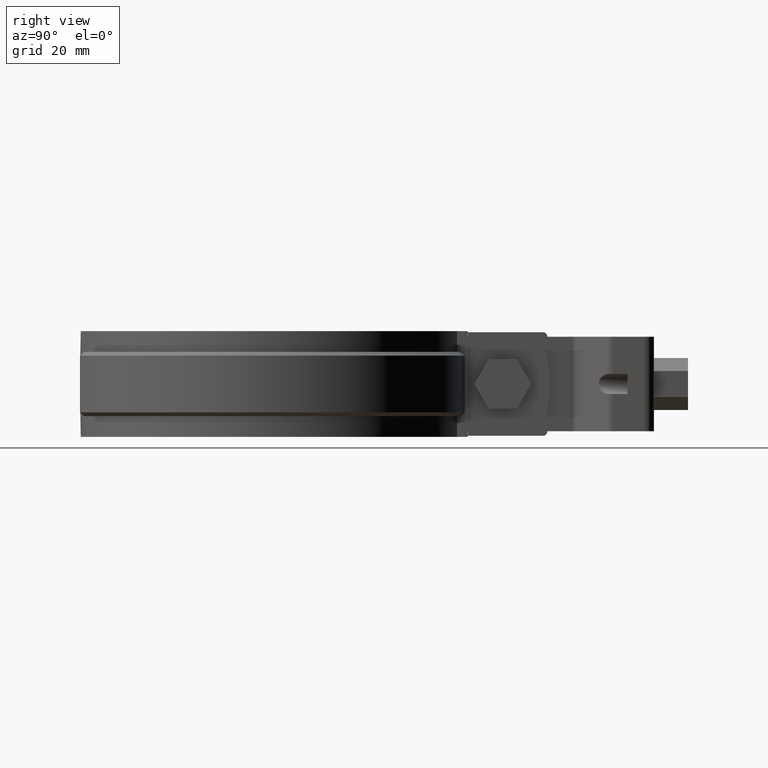
[diagram: clean part render]
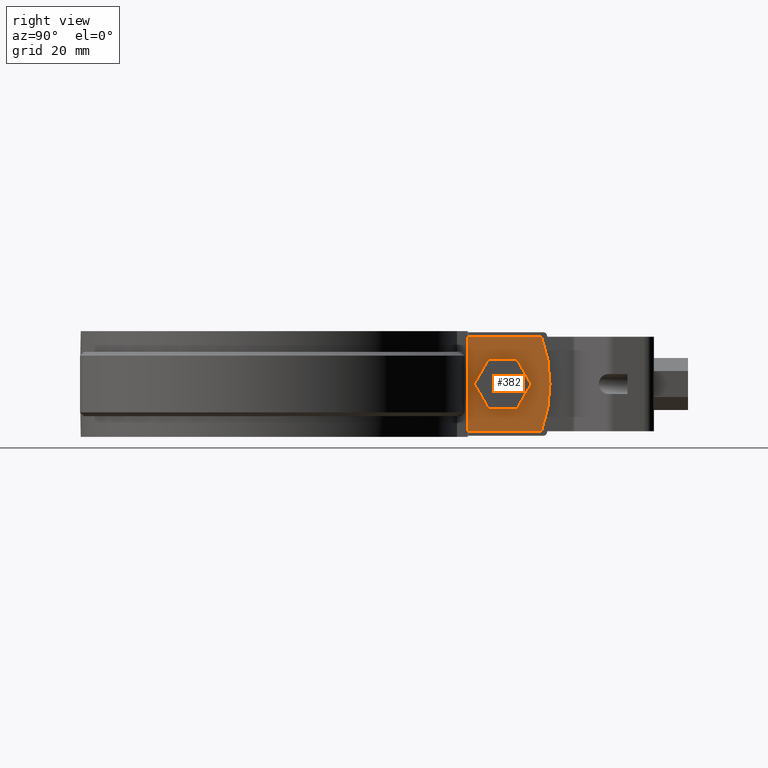
[diagram: same view with one face highlighted and labeled with its STEP entity id]
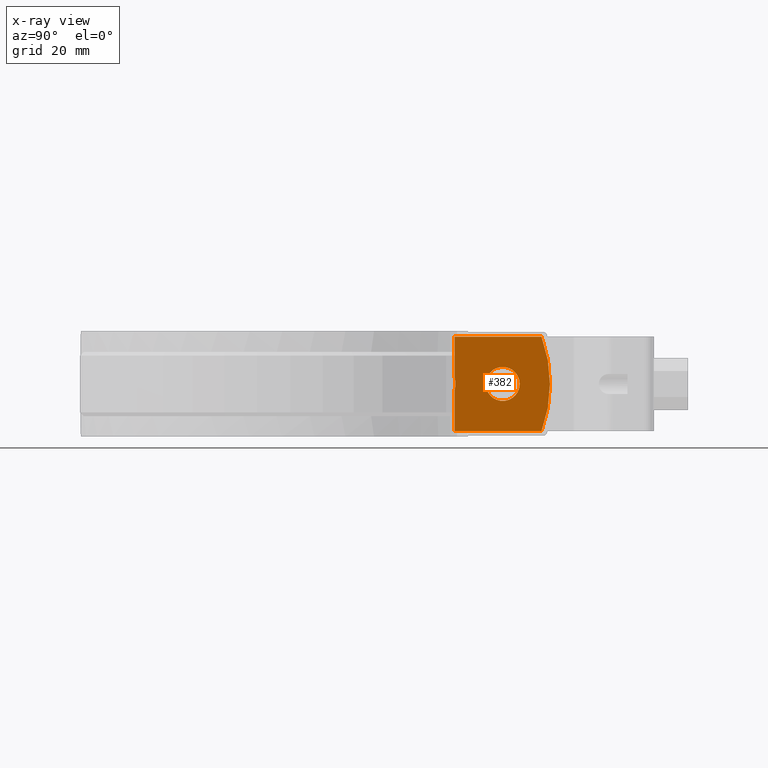
[diagram: x-ray of the same camera — body ghosted, the highlighted face saturated]
A machine part, right view. The second image highlights one B-rep face of the part: STEP entity #382.
The next image is the same camera in x-ray: the body ghosted, the highlighted face saturated — about 0% of this face is hidden behind the body in this view.
In plain terms, the highlighted planar face has unit normal (1, 0, 0).
Its self-contained STEP definition (entity closure, byte-faithful):
#382 = ADVANCED_FACE( '', ( #735, #736 ), #737, .T. );
#735 = FACE_OUTER_BOUND( '', #1581, .T. );
#736 = FACE_BOUND( '', #1582, .T. );
#737 = PLANE( '', #1583 );
#1581 = EDGE_LOOP( '', ( #3103, #3104, #3105, #3106, #3107, #3108 ) );
#1582 = EDGE_LOOP( '', ( #3109 ) );
#1583 = AXIS2_PLACEMENT_3D( '', #3110, #3111, #3112 );
#3103 = ORIENTED_EDGE( '', *, *, #6248, .F. );
#3104 = ORIENTED_EDGE( '', *, *, #6249, .F. );
#3105 = ORIENTED_EDGE( '', *, *, #6250, .T. );
#3106 = ORIENTED_EDGE( '', *, *, #6251, .T. );
#3107 = ORIENTED_EDGE( '', *, *, #6252, .F. );
#3108 = ORIENTED_EDGE( '', *, *, #6233, .F. );
#3109 = ORIENTED_EDGE( '', *, *, #6253, .T. );
#3110 = CARTESIAN_POINT( '', ( 5.00000000000000, 49.0530580086502, -12.5000000000000 ) );
#3111 = DIRECTION( '', ( 1.00000000000000, 6.16283340149655E-017, 0.000000000000000 ) );
#3112 = DIRECTION( '', ( 6.16283340149655E-017, -1.00000000000000, 0.000000000000000 ) );
#6233 = EDGE_CURVE( '', #7219, #7221, #7222, .T. );
#6248 = EDGE_CURVE( '', #7236, #7219, #7238, .T. );
#6249 = EDGE_CURVE( '', #7239, #7236, #7240, .T. );
#6250 = EDGE_CURVE( '', #7239, #7241, #7242, .T. );
#6251 = EDGE_CURVE( '', #7241, #7243, #7244, .T. );
#6252 = EDGE_CURVE( '', #7221, #7243, #7245, .T. );
#6253 = EDGE_CURVE( '', #7246, #7246, #7247, .F. );
#7219 = VERTEX_POINT( '', #9587 );
#7221 = VERTEX_POINT( '', #9604 );
#7222 = LINE( '', #9605, #9606 );
#7236 = VERTEX_POINT( '', #9695 );
#7238 = B_SPLINE_CURVE_WITH_KNOTS( '', 3, ( #9712, #9713, #9714, #9715, #9716, #9717, #9718, #9719 ), .UNSPECIFIED., .F., .F., ( 4, 2, 2, 4 ), ( 6.50521303491303E-019, 0.00168369248448245, 0.00252553872672367, 0.00336738496896489 ), .UNSPECIFIED. );
#7239 = VERTEX_POINT( '', #9720 );
#7240 = LINE( '', #9721, #9722 );
#7241 = VERTEX_POINT( '', #9723 );
#7242 = LINE( '', #9724, #9725 );
#7243 = VERTEX_POINT( '', #9726 );
#7244 = CIRCLE( '', #9727, 36.0000000000000 );
#7245 = LINE( '', #9728, #9729 );
#7246 = VERTEX_POINT( '', #9730 );
#7247 = CIRCLE( '', #9731, 4.50000000000000 );
#9587 = CARTESIAN_POINT( '', ( 5.00000000000000, 49.0530580086502, 1.67210469196951 ) );
#9604 = CARTESIAN_POINT( '', ( 5.00000000000000, 49.0530580086502, 12.5000000000000 ) );
#9605 = CARTESIAN_POINT( '', ( 5.00000000000000, 49.0530580086502, -12.5000000000000 ) );
#9606 = VECTOR( '', #12608, 1000.00000000000 );
#9695 = CARTESIAN_POINT( '', ( 5.00000000000000, 49.0530580086502, -1.67210469196750 ) );
#9712 = CARTESIAN_POINT( '', ( 5.00000000000001, 49.0530580086502, -1.67210469196750 ) );
#9713 = CARTESIAN_POINT( '', ( 5.00000000000001, 49.2132706009072, -1.12597755052289 ) );
#9714 = CARTESIAN_POINT( '', ( 5.00000000000000, 49.2954065745053, -0.570560776815829 ) );
#9715 = CARTESIAN_POINT( '', ( 5.00000000000001, 49.2962121759444, 0.277127459909967 ) );
#9716 = CARTESIAN_POINT( '', ( 5.00000000000001, 49.2752645961910, 0.562483787800153 ) );
#9717 = CARTESIAN_POINT( '', ( 5.00000000000001, 49.1937060211499, 1.12236178021089 ) );
#9718 = CARTESIAN_POINT( '', ( 4.99999999999990, 49.1332006194174, 1.39891733316318 ) );
#9719 = CARTESIAN_POINT( '', ( 4.99999999999990, 49.0530580086502, 1.67210469196941 ) );
#9720 = CARTESIAN_POINT( '', ( 5.00000000000000, 49.0530580086502, -12.5000000000000 ) );
#9721 = CARTESIAN_POINT( '', ( 5.00000000000000, 49.0530580086502, -12.5000000000000 ) );
#9722 = VECTOR( '', #12621, 1000.00000000000 );
#9723 = CARTESIAN_POINT( '', ( 5.00000000000000, 72.0465717536132, -12.5000000000000 ) );
#9724 = CARTESIAN_POINT( '', ( 5.00000000000000, 49.0530580086502, -12.5000000000000 ) );
#9725 = VECTOR( '', #12622, 1000.00000000000 );
#9726 = CARTESIAN_POINT( '', ( 5.00000000000000, 72.0465717536132, 12.5000000000000 ) );
#9727 = AXIS2_PLACEMENT_3D( '', #12623, #12624, #12625 );
#9728 = CARTESIAN_POINT( '', ( 5.00000000000000, 49.0530580086502, 12.5000000000000 ) );
#9729 = VECTOR( '', #12626, 1000.00000000000 );
#9730 = CARTESIAN_POINT( '', ( 5.00000000000000, 66.2863881048236, -1.73472347597681E-015 ) );
#9731 = AXIS2_PLACEMENT_3D( '', #12627, #12628, #12629 );
#12608 = DIRECTION( '', ( 0.000000000000000, 0.000000000000000, 1.00000000000000 ) );
#12621 = DIRECTION( '', ( 0.000000000000000, 0.000000000000000, 1.00000000000000 ) );
#12622 = DIRECTION( '', ( -6.16283340149655E-017, 1.00000000000000, 0.000000000000000 ) );
#12623 = CARTESIAN_POINT( '', ( 5.00000000000000, 38.2863881048236, 7.51194781597065E-031 ) );
#12624 = DIRECTION( '', ( 1.00000000000000, 6.16283340149655E-017, 0.000000000000000 ) );
#12625 = DIRECTION( '', ( -6.16283340149655E-017, 1.00000000000000, 0.000000000000000 ) );
#12626 = DIRECTION( '', ( -6.16283340149655E-017, 1.00000000000000, 0.000000000000000 ) );
#12627 = CARTESIAN_POINT( '', ( 5.00000000000000, 61.7863881048236, -1.73472347597681E-015 ) );
#12628 = DIRECTION( '', ( 1.00000000000000, 6.16283340149655E-017, 0.000000000000000 ) );
#12629 = DIRECTION( '', ( -6.16283340149655E-017, 1.00000000000000, 0.000000000000000 ) );